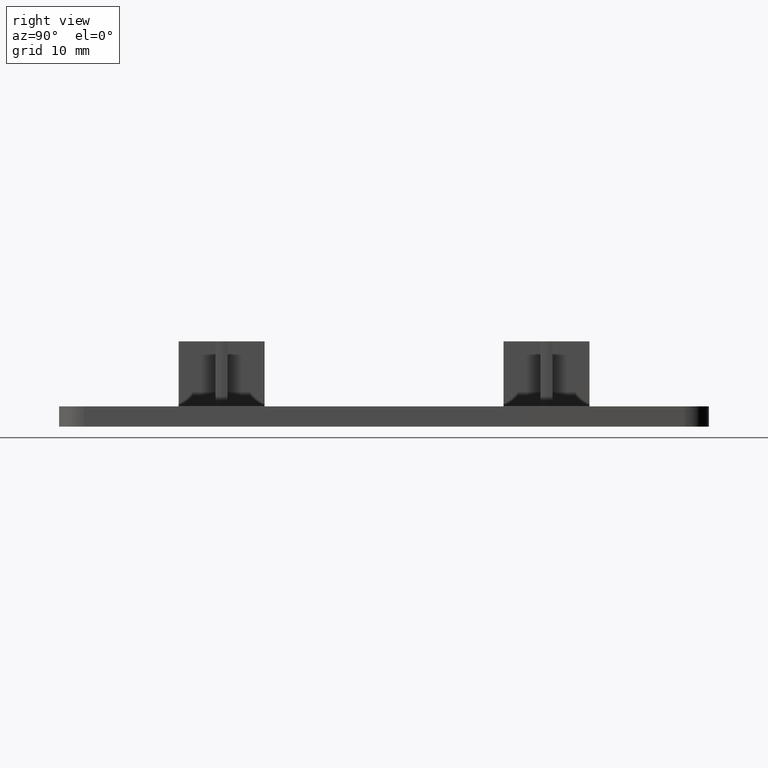
[diagram: clean part render]
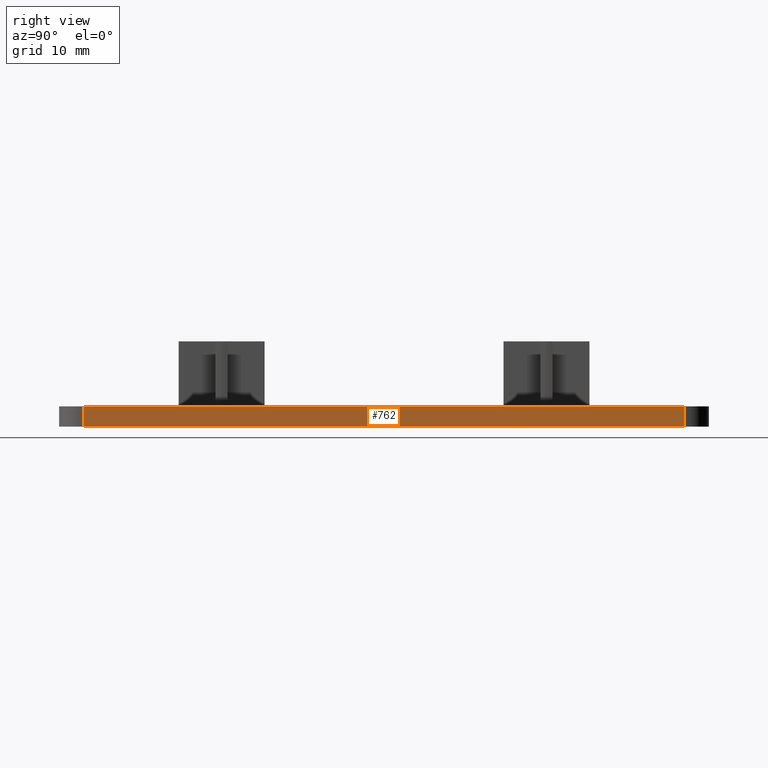
[diagram: same view with one face highlighted and labeled with its STEP entity id]
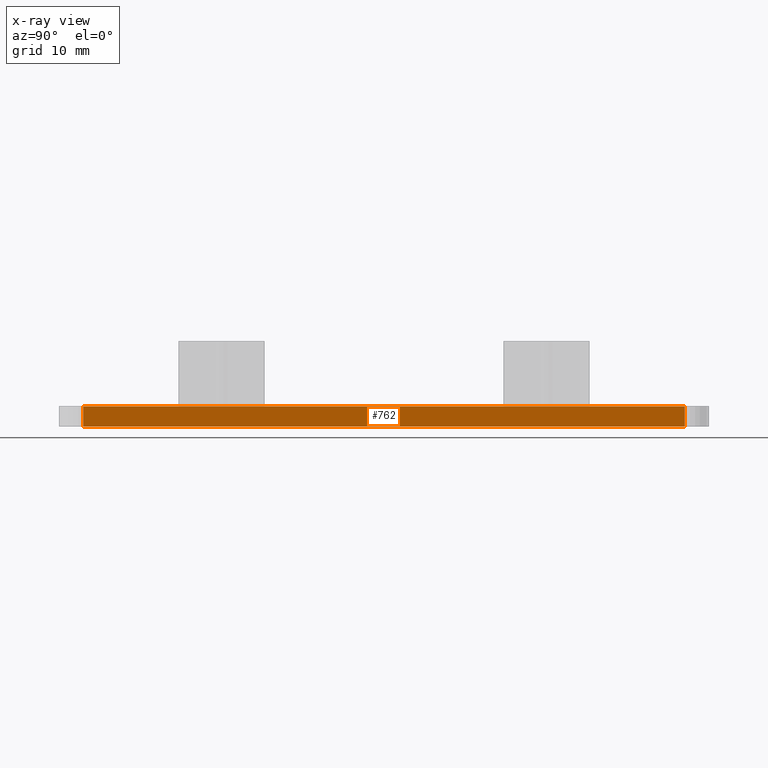
[diagram: x-ray of the same camera — body ghosted, the highlighted face saturated]
A machine part, right view. The second image highlights one B-rep face of the part: STEP entity #762.
The next image is the same camera in x-ray: the body ghosted, the highlighted face saturated — about 0% of this face is hidden behind the body in this view.
In plain terms, the highlighted planar face has unit normal (1, -0, 0).
Its self-contained STEP definition (entity closure, byte-faithful):
#128=FACE_OUTER_BOUND('',#164,.T.);
#164=EDGE_LOOP('',(#646,#647,#648,#649));
#234=LINE('',#1243,#326);
#235=LINE('',#1246,#327);
#236=LINE('',#1248,#328);
#237=LINE('',#1249,#329);
#326=VECTOR('',#998,2.5);
#327=VECTOR('',#1001,74.);
#328=VECTOR('',#1002,74.);
#329=VECTOR('',#1003,2.5);
#410=VERTEX_POINT('',#1239);
#411=VERTEX_POINT('',#1241);
#412=VERTEX_POINT('',#1245);
#413=VERTEX_POINT('',#1247);
#500=EDGE_CURVE('',#410,#411,#234,.T.);
#501=EDGE_CURVE('',#412,#410,#235,.T.);
#502=EDGE_CURVE('',#413,#411,#236,.T.);
#503=EDGE_CURVE('',#412,#413,#237,.T.);
#646=ORIENTED_EDGE('',*,*,#501,.T.);
#647=ORIENTED_EDGE('',*,*,#500,.T.);
#648=ORIENTED_EDGE('',*,*,#502,.F.);
#649=ORIENTED_EDGE('',*,*,#503,.F.);
#729=PLANE('',#818);
#762=ADVANCED_FACE('',(#128),#729,.T.);
#818=AXIS2_PLACEMENT_3D('',#1244,#999,#1000);
#998=DIRECTION('',(0.,0.,1.));
#999=DIRECTION('center_axis',(1.,-2.40048221540574E-16,0.));
#1000=DIRECTION('ref_axis',(3.5527136788005E-16,1.,0.));
#1001=DIRECTION('',(2.40048221540574E-16,1.,0.));
#1002=DIRECTION('',(2.40048221540574E-16,1.,0.));
#1003=DIRECTION('',(0.,0.,1.));
#1239=CARTESIAN_POINT('',(20.,57.,0.));
#1241=CARTESIAN_POINT('',(20.,57.,2.5));
#1243=CARTESIAN_POINT('',(20.,57.,0.));
#1244=CARTESIAN_POINT('Origin',(20.,-17.,0.));
#1245=CARTESIAN_POINT('',(20.,-17.,0.));
#1246=CARTESIAN_POINT('',(20.,-17.,0.));
#1247=CARTESIAN_POINT('',(20.,-17.,2.5));
#1248=CARTESIAN_POINT('',(20.,-17.,2.5));
#1249=CARTESIAN_POINT('',(20.,-17.,0.));